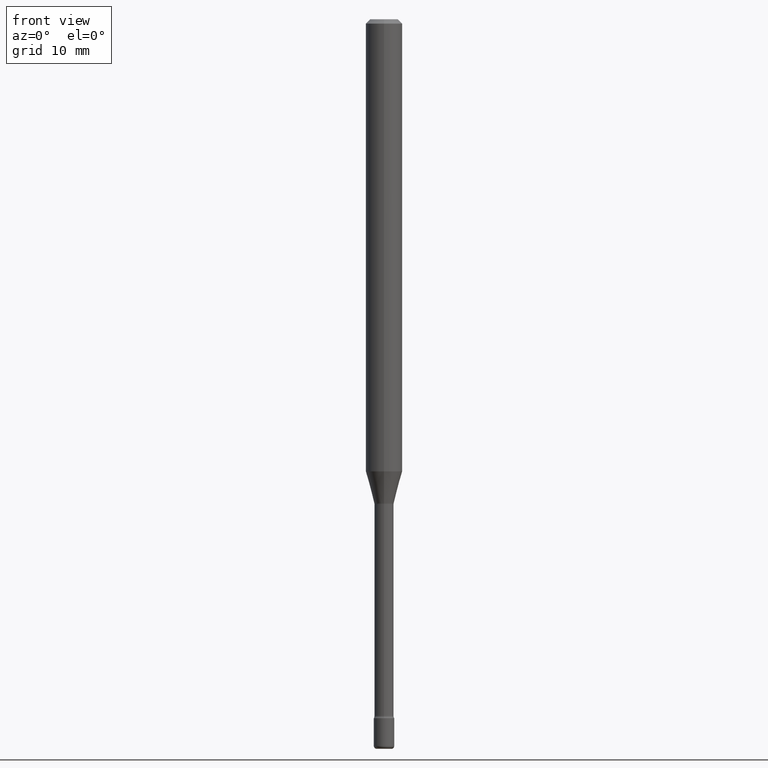
[diagram: clean part render]
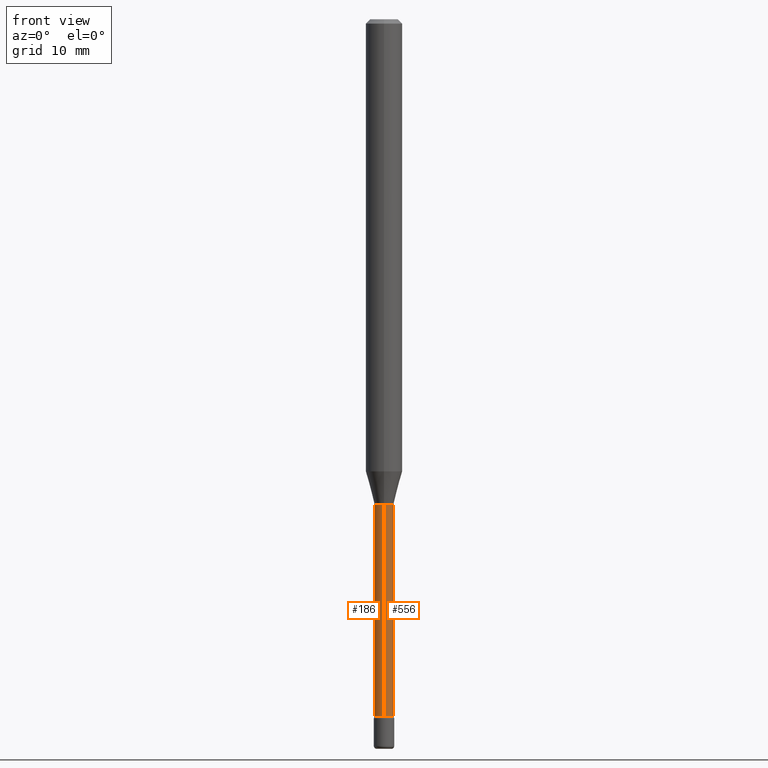
[diagram: same view with one multi-face feature highlighted, each face labeled with its STEP entity id]
A machine part, front view. The highlighted faces form ONE feature: a constant-radius fillet chain: 2 tangent blend faces with common blend radius 0.8357 mm. The faces share edges in the B-rep.
Their STEP definitions:
[1] entity #556 (Cylinder):
#12 = DIRECTION ( 'NONE',  ( -2.445417640947345847E-29, 3.491554610375806299E-15, 1.000000000000000000 ) ) ;
#43 = DIRECTION ( 'NONE',  ( -6.982962677686265133E-15, -1.000000000000000000, 0.000000000000000000 ) ) ;
#69 = DIRECTION ( 'NONE',  ( -2.445417640947345847E-29, 3.491554610375806299E-15, 1.000000000000000000 ) ) ;
#91 = ORIENTED_EDGE ( 'NONE', *, *, #418, .F. ) ;
#95 = VECTOR ( 'NONE', #277, 39.37007874015748143 ) ;
#98 = CARTESIAN_POINT ( 'NONE',  ( 2.337685600651315248E-16, 0.03289999999999419777, -1.661974787463811332 ) ) ;
#121 = ORIENTED_EDGE ( 'NONE', *, *, #127, .T. ) ;
#127 = EDGE_CURVE ( 'NONE', #268, #357, #353, .T. ) ;
#134 = CARTESIAN_POINT ( 'NONE',  ( -2.297394720958374770E-16, -0.03290000000000579961, -1.661974787463811332 ) ) ;
#137 = CIRCLE ( 'NONE', #432, 0.03289999999999999869 ) ;
#146 = CYLINDRICAL_SURFACE ( 'NONE', #543, 0.03290000000000001257 ) ;
#191 = DIRECTION ( 'NONE',  ( -6.982962677686265133E-15, -1.000000000000000000, 3.491554610375807088E-15 ) ) ;
#194 = LINE ( 'NONE', #550, #379 ) ;
#221 = CARTESIAN_POINT ( 'NONE',  ( -2.297394720958198756E-16, -0.03290000000000835312, -2.387345589506695731 ) ) ;
#268 = VERTEX_POINT ( 'NONE', #221 ) ;
#269 = FACE_OUTER_BOUND ( 'NONE', #278, .T. ) ;
#277 = DIRECTION ( 'NONE',  ( -2.445417640947345847E-29, 3.491554610375806299E-15, 1.000000000000000000 ) ) ;
#278 = EDGE_LOOP ( 'NONE', ( #121, #349, #91, #378 ) ) ;
#303 = VERTEX_POINT ( 'NONE', #134 ) ;
#314 = VERTEX_POINT ( 'NONE', #98 ) ;
#319 = DIRECTION ( 'NONE',  ( -2.445417640947345847E-29, 3.491554610375806299E-15, 1.000000000000000000 ) ) ;
#343 = DIRECTION ( 'NONE',  ( -6.982962677686265133E-15, -1.000000000000000000, 0.000000000000000000 ) ) ;
#345 = CARTESIAN_POINT ( 'NONE',  ( 4.064222464073720144E-29, -5.802875731497621778E-15, -1.661974787463811332 ) ) ;
#349 = ORIENTED_EDGE ( 'NONE', *, *, #499, .T. ) ;
#353 = CIRCLE ( 'NONE', #361, 0.03290000000000001951 ) ;
#357 = VERTEX_POINT ( 'NONE', #490 ) ;
#361 = AXIS2_PLACEMENT_3D ( 'NONE', #473, #558, #343 ) ;
#378 = ORIENTED_EDGE ( 'NONE', *, *, #570, .F. ) ;
#379 = VECTOR ( 'NONE', #69, 39.37007874015748143 ) ;
#418 = EDGE_CURVE ( 'NONE', #303, #314, #137, .T. ) ;
#432 = AXIS2_PLACEMENT_3D ( 'NONE', #345, #12, #43 ) ;
#446 = CARTESIAN_POINT ( 'NONE',  ( -1.169113584055446105E-44, 1.669184350826100908E-30, 4.780733988912460139E-16 ) ) ;
#473 = CARTESIAN_POINT ( 'NONE',  ( 5.838057019617513987E-29, -8.335547499602452744E-15, -2.387345589506695731 ) ) ;
#490 = CARTESIAN_POINT ( 'NONE',  ( 2.412292587906125439E-16, 0.03289999999999167896, -2.387345589506695731 ) ) ;
#495 = LINE ( 'NONE', #553, #95 ) ;
#499 = EDGE_CURVE ( 'NONE', #357, #314, #495, .T. ) ;
#543 = AXIS2_PLACEMENT_3D ( 'NONE', #446, #319, #191 ) ;
#550 = CARTESIAN_POINT ( 'NONE',  ( -2.297394720958782020E-16, -0.03290000000000001257, 5.929455455726101838E-16 ) ) ;
#553 = CARTESIAN_POINT ( 'NONE',  ( 2.337685600650730011E-16, 0.03290000000000001257, 3.632012522098820413E-16 ) ) ;
#556 = ADVANCED_FACE ( 'NONE', ( #269 ), #146, .T. ) ;
#558 = DIRECTION ( 'NONE',  ( -2.445417640947345847E-29, 3.491554610375806299E-15, 1.000000000000000000 ) ) ;
#570 = EDGE_CURVE ( 'NONE', #268, #303, #194, .T. ) ;
[2] entity #186 (Cylinder):
#39 = CIRCLE ( 'NONE', #93, 0.03290000000000001951 ) ;
#69 = DIRECTION ( 'NONE',  ( -2.445417640947345847E-29, 3.491554610375806299E-15, 1.000000000000000000 ) ) ;
#83 = DIRECTION ( 'NONE',  ( -2.445417640947345847E-29, 3.491554610375806299E-15, 1.000000000000000000 ) ) ;
#93 = AXIS2_PLACEMENT_3D ( 'NONE', #502, #368, #555 ) ;
#95 = VECTOR ( 'NONE', #277, 39.37007874015748143 ) ;
#96 = ORIENTED_EDGE ( 'NONE', *, *, #499, .F. ) ;
#97 = EDGE_CURVE ( 'NONE', #357, #268, #39, .T. ) ;
#98 = CARTESIAN_POINT ( 'NONE',  ( 2.337685600651315248E-16, 0.03289999999999419777, -1.661974787463811332 ) ) ;
#112 = ORIENTED_EDGE ( 'NONE', *, *, #570, .T. ) ;
#126 = DIRECTION ( 'NONE',  ( -6.982962677686265133E-15, -1.000000000000000000, 3.491554610375807088E-15 ) ) ;
#128 = CARTESIAN_POINT ( 'NONE',  ( 4.064222464073720144E-29, -5.802875731497621778E-15, -1.661974787463811332 ) ) ;
#134 = CARTESIAN_POINT ( 'NONE',  ( -2.297394720958374770E-16, -0.03290000000000579961, -1.661974787463811332 ) ) ;
#144 = EDGE_CURVE ( 'NONE', #314, #303, #255, .T. ) ;
#186 = ADVANCED_FACE ( 'NONE', ( #382 ), #244, .T. ) ;
#194 = LINE ( 'NONE', #550, #379 ) ;
#205 = DIRECTION ( 'NONE',  ( -2.445417640947345847E-29, 3.491554610375806299E-15, 1.000000000000000000 ) ) ;
#221 = CARTESIAN_POINT ( 'NONE',  ( -2.297394720958198756E-16, -0.03290000000000835312, -2.387345589506695731 ) ) ;
#244 = CYLINDRICAL_SURFACE ( 'NONE', #557, 0.03290000000000001257 ) ;
#255 = CIRCLE ( 'NONE', #507, 0.03289999999999999869 ) ;
#268 = VERTEX_POINT ( 'NONE', #221 ) ;
#277 = DIRECTION ( 'NONE',  ( -2.445417640947345847E-29, 3.491554610375806299E-15, 1.000000000000000000 ) ) ;
#303 = VERTEX_POINT ( 'NONE', #134 ) ;
#314 = VERTEX_POINT ( 'NONE', #98 ) ;
#317 = ORIENTED_EDGE ( 'NONE', *, *, #144, .F. ) ;
#357 = VERTEX_POINT ( 'NONE', #490 ) ;
#368 = DIRECTION ( 'NONE',  ( -2.445417640947345847E-29, 3.491554610375806299E-15, 1.000000000000000000 ) ) ;
#371 = DIRECTION ( 'NONE',  ( -6.982962677686265133E-15, -1.000000000000000000, 0.000000000000000000 ) ) ;
#379 = VECTOR ( 'NONE', #69, 39.37007874015748143 ) ;
#382 = FACE_OUTER_BOUND ( 'NONE', #416, .T. ) ;
#416 = EDGE_LOOP ( 'NONE', ( #96, #491, #112, #317 ) ) ;
#490 = CARTESIAN_POINT ( 'NONE',  ( 2.412292587906125439E-16, 0.03289999999999167896, -2.387345589506695731 ) ) ;
#491 = ORIENTED_EDGE ( 'NONE', *, *, #97, .T. ) ;
#495 = LINE ( 'NONE', #553, #95 ) ;
#499 = EDGE_CURVE ( 'NONE', #357, #314, #495, .T. ) ;
#502 = CARTESIAN_POINT ( 'NONE',  ( 5.838057019617513987E-29, -8.335547499602452744E-15, -2.387345589506695731 ) ) ;
#507 = AXIS2_PLACEMENT_3D ( 'NONE', #128, #83, #371 ) ;
#550 = CARTESIAN_POINT ( 'NONE',  ( -2.297394720958782020E-16, -0.03290000000000001257, 5.929455455726101838E-16 ) ) ;
#553 = CARTESIAN_POINT ( 'NONE',  ( 2.337685600650730011E-16, 0.03290000000000001257, 3.632012522098820413E-16 ) ) ;
#555 = DIRECTION ( 'NONE',  ( -6.982962677686265133E-15, -1.000000000000000000, 0.000000000000000000 ) ) ;
#557 = AXIS2_PLACEMENT_3D ( 'NONE', #571, #205, #126 ) ;
#570 = EDGE_CURVE ( 'NONE', #268, #303, #194, .T. ) ;
#571 = CARTESIAN_POINT ( 'NONE',  ( -1.169113584055446105E-44, 1.669184350826100908E-30, 4.780733988912460139E-16 ) ) ;